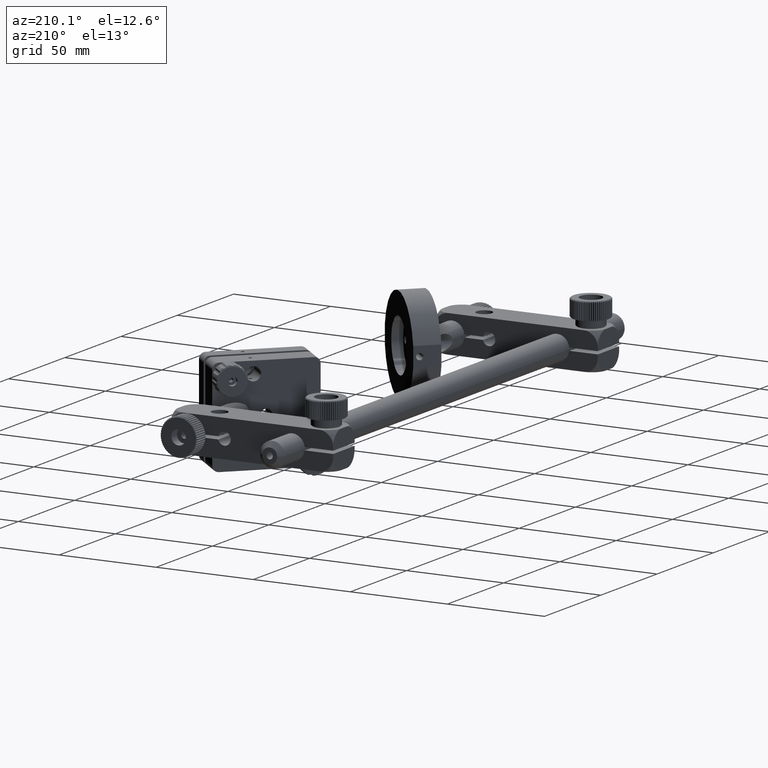
[diagram: clean part render]
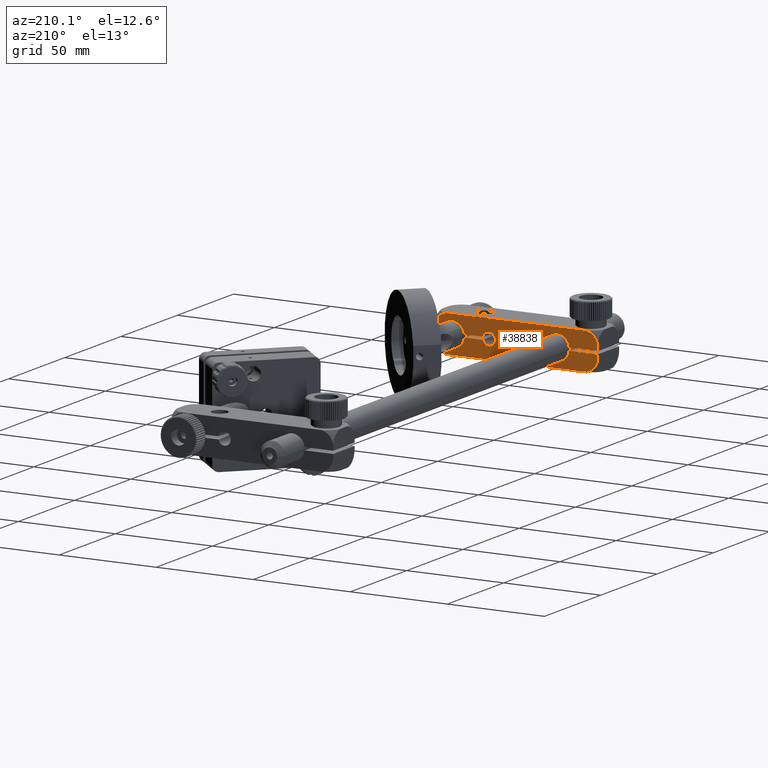
[diagram: same view with one face highlighted and labeled with its STEP entity id]
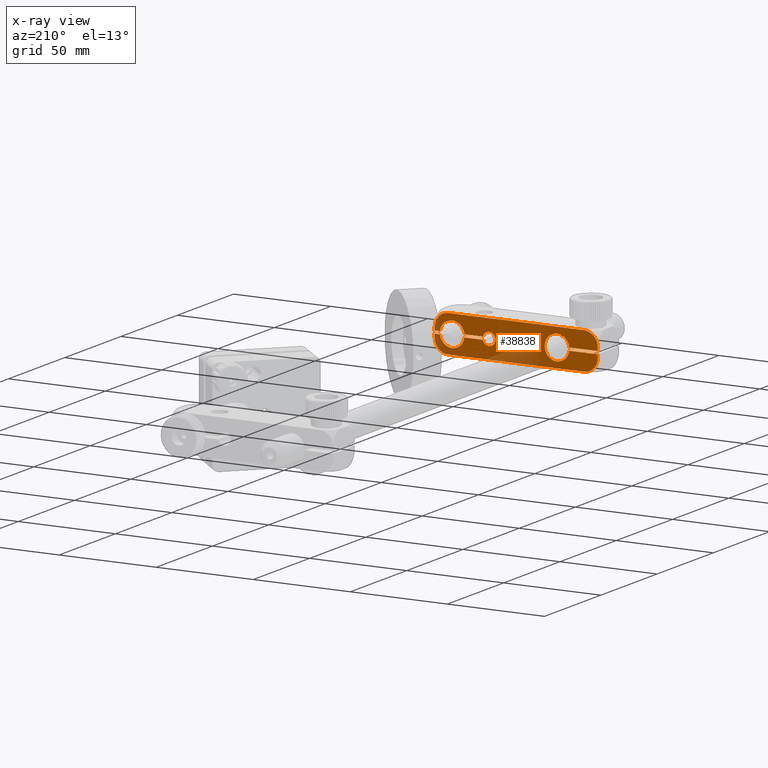
[diagram: x-ray of the same camera — body ghosted, the highlighted face saturated]
A machine part, auxiliary view. The second image highlights one B-rep face of the part: STEP entity #38838.
The next image is the same camera in x-ray: the body ghosted, the highlighted face saturated — about 15% of this face is hidden behind the body in this view.
In plain terms, the highlighted planar face has unit normal (0, -1, 0).
Its self-contained STEP definition (entity closure, byte-faithful):
#123 = CARTESIAN_POINT ( 'NONE',  ( -13.92893218813448900, 143.8670949863762600, 2.428932188134529400 ) ) ;
#374 = CARTESIAN_POINT ( 'NONE',  ( 54.00000000000000700, 143.8670949863762600, 6.349999999999972100 ) ) ;
#533 = EDGE_CURVE ( 'NONE', #46307, #14792, #1295, .T. ) ;
#534 = CIRCLE ( 'NONE', #3259, 7.071067811865467500 ) ;
#921 = ORIENTED_EDGE ( 'NONE', *, *, #43668, .F. ) ;
#1004 = CARTESIAN_POINT ( 'NONE',  ( 63.00000000000000000, 143.8670949863762000, -2.428932188134584400 ) ) ;
#1066 = CARTESIAN_POINT ( 'NONE',  ( 63.00000000000000000, 143.8670949863762000, 2.428932188134540000 ) ) ;
#1105 = DIRECTION ( 'NONE',  ( -0.0000000000000000000, -0.0000000000000000000, -1.000000000000000000 ) ) ;
#1124 = VECTOR ( 'NONE', #20418, 1000.000000000000000 ) ;
#1131 = ORIENTED_EDGE ( 'NONE', *, *, #21423, .F. ) ;
#1295 = LINE ( 'NONE', #26675, #5340 ) ;
#1808 = DIRECTION ( 'NONE',  ( -1.000000000000000000, -0.0000000000000000000, -0.0000000000000000000 ) ) ;
#2171 = VERTEX_POINT ( 'NONE', #39664 ) ;
#2292 = EDGE_CURVE ( 'NONE', #15689, #5230, #20998, .T. ) ;
#2426 = ORIENTED_EDGE ( 'NONE', *, *, #2292, .F. ) ;
#2659 = CIRCLE ( 'NONE', #7003, 7.071067811865467500 ) ;
#2667 = CIRCLE ( 'NONE', #36804, 7.071067811865467500 ) ;
#2793 = VECTOR ( 'NONE', #37359, 1000.000000000000000 ) ;
#2811 = AXIS2_PLACEMENT_3D ( 'NONE', #21240, #10143, #21408 ) ;
#3068 = CARTESIAN_POINT ( 'NONE',  ( 63.00000000000000000, 143.8670949863762600, 9.499999999999976900 ) ) ;
#3099 = ORIENTED_EDGE ( 'NONE', *, *, #41398, .T. ) ;
#3212 = DIRECTION ( 'NONE',  ( 0.0000000000000000000, 0.0000000000000000000, -1.000000000000000000 ) ) ;
#3259 = AXIS2_PLACEMENT_3D ( 'NONE', #40710, #33101, #10675 ) ;
#3272 = CARTESIAN_POINT ( 'NONE',  ( -13.92893218813447500, 143.8670949863762600, -9.500000000000037300 ) ) ;
#3335 = AXIS2_PLACEMENT_3D ( 'NONE', #12867, #42705, #4939 ) ;
#3532 = CARTESIAN_POINT ( 'NONE',  ( 55.92893218813449600, 143.8670949863762600, -2.428932188134573300 ) ) ;
#3783 = VECTOR ( 'NONE', #1105, 1000.000000000000000 ) ;
#3857 = DIRECTION ( 'NONE',  ( 0.0000000000000000000, 0.0000000000000000000, -1.000000000000000000 ) ) ;
#3865 = EDGE_CURVE ( 'NONE', #18624, #35172, #30878, .T. ) ;
#4153 = CARTESIAN_POINT ( 'NONE',  ( -21.00000000000000000, 143.8670949863762000, -2.428932188134584400 ) ) ;
#4413 = VERTEX_POINT ( 'NONE', #4153 ) ;
#4477 = VERTEX_POINT ( 'NONE', #45524 ) ;
#4527 = DIRECTION ( 'NONE',  ( 0.0000000000000000000, 0.0000000000000000000, -1.000000000000000000 ) ) ;
#4567 = LINE ( 'NONE', #3068, #12095 ) ;
#4671 = AXIS2_PLACEMENT_3D ( 'NONE', #35935, #13563, #13392 ) ;
#4745 = DIRECTION ( 'NONE',  ( 0.0000000000000000000, -1.000000000000000000, 0.0000000000000000000 ) ) ;
#4830 = CARTESIAN_POINT ( 'NONE',  ( -6.305553108173777200, 143.8670949863762600, -0.7500000000000222000 ) ) ;
#4939 = DIRECTION ( 'NONE',  ( 0.0000000000000000000, 0.0000000000000000000, -1.000000000000000000 ) ) ;
#5217 = LINE ( 'NONE', #22693, #24475 ) ;
#5230 = VERTEX_POINT ( 'NONE', #4830 ) ;
#5321 = DIRECTION ( 'NONE',  ( 0.0000000000000000000, -1.000000000000000000, 0.0000000000000000000 ) ) ;
#5340 = VECTOR ( 'NONE', #26338, 1000.000000000000000 ) ;
#5472 = ORIENTED_EDGE ( 'NONE', *, *, #8112, .F. ) ;
#5868 = CARTESIAN_POINT ( 'NONE',  ( 35.00000000000000000, 143.8670949863762600, 3.249999999999972000 ) ) ;
#6034 = CARTESIAN_POINT ( 'NONE',  ( 63.00000000000000000, 143.8670949863762600, 0.7499999999999784600 ) ) ;
#6434 = CARTESIAN_POINT ( 'NONE',  ( 63.00000000000000000, 143.8670949863762600, -0.7500000000000218700 ) ) ;
#6920 = DIRECTION ( 'NONE',  ( 0.0000000000000000000, -1.000000000000000000, 0.0000000000000000000 ) ) ;
#6921 = ORIENTED_EDGE ( 'NONE', *, *, #15515, .F. ) ;
#7003 = AXIS2_PLACEMENT_3D ( 'NONE', #3532, #40677, #18142 ) ;
#7293 = LINE ( 'NONE', #20990, #36507 ) ;
#7398 = CARTESIAN_POINT ( 'NONE',  ( -13.92893218813448900, 143.8670949863762600, 2.428932188134529400 ) ) ;
#7493 = AXIS2_PLACEMENT_3D ( 'NONE', #10865, #29366, #18051 ) ;
#7631 = CARTESIAN_POINT ( 'NONE',  ( -13.92893218813448900, 143.8670949863762600, -2.428932188134573300 ) ) ;
#7674 = ORIENTED_EDGE ( 'NONE', *, *, #30524, .F. ) ;
#7926 = DIRECTION ( 'NONE',  ( 0.0000000000000000000, -1.000000000000000000, 0.0000000000000000000 ) ) ;
#8112 = EDGE_CURVE ( 'NONE', #8384, #4413, #12670, .T. ) ;
#8384 = VERTEX_POINT ( 'NONE', #25243 ) ;
#8467 = EDGE_CURVE ( 'NONE', #23860, #2171, #534, .T. ) ;
#8799 = EDGE_CURVE ( 'NONE', #31212, #38845, #15012, .T. ) ;
#9259 = CIRCLE ( 'NONE', #3335, 7.071067811865467500 ) ;
#9469 = AXIS2_PLACEMENT_3D ( 'NONE', #7398, #6920, #3857 ) ;
#9641 = CARTESIAN_POINT ( 'NONE',  ( 54.00000000000000700, 143.8670949863762600, -3.155314007983727800E-014 ) ) ;
#9927 = DIRECTION ( 'NONE',  ( 0.0000000000000000000, 1.000000000000000000, 0.0000000000000000000 ) ) ;
#9935 = CIRCLE ( 'NONE', #7493, 6.350000000000001400 ) ;
#10143 = DIRECTION ( 'NONE',  ( 0.0000000000000000000, 1.000000000000000000, 0.0000000000000000000 ) ) ;
#10208 = ORIENTED_EDGE ( 'NONE', *, *, #18230, .F. ) ;
#10610 = AXIS2_PLACEMENT_3D ( 'NONE', #19889, #9927, #35729 ) ;
#10675 = DIRECTION ( 'NONE',  ( 0.0000000000000000000, 0.0000000000000000000, -1.000000000000000000 ) ) ;
#10704 = CARTESIAN_POINT ( 'NONE',  ( -21.00000000000000000, 143.8670949863762000, 2.428932188134540000 ) ) ;
#10865 = CARTESIAN_POINT ( 'NONE',  ( 0.0000000000000000000, 143.8670949863762600, -2.494026576919642200E-014 ) ) ;
#11212 = CIRCLE ( 'NONE', #10610, 6.350000000000001400 ) ;
#11327 = VERTEX_POINT ( 'NONE', #25455 ) ;
#11375 = DIRECTION ( 'NONE',  ( 0.0000000000000000000, 0.0000000000000000000, -1.000000000000000000 ) ) ;
#11862 = EDGE_CURVE ( 'NONE', #16061, #42581, #36387, .T. ) ;
#12074 = DIRECTION ( 'NONE',  ( 0.0000000000000000000, 0.0000000000000000000, 1.000000000000000000 ) ) ;
#12095 = VECTOR ( 'NONE', #18011, 1000.000000000000000 ) ;
#12467 = PLANE ( 'NONE',  #12553 ) ;
#12553 = AXIS2_PLACEMENT_3D ( 'NONE', #38580, #5321, #21286 ) ;
#12620 = CIRCLE ( 'NONE', #22725, 7.071067811865467500 ) ;
#12670 = LINE ( 'NONE', #19037, #2793 ) ;
#12867 = CARTESIAN_POINT ( 'NONE',  ( 55.92893218813449600, 143.8670949863762600, 2.428932188134529400 ) ) ;
#13062 = CARTESIAN_POINT ( 'NONE',  ( 38.16227766016837800, 143.8670949863762600, 0.7499999999999783500 ) ) ;
#13392 = DIRECTION ( 'NONE',  ( 0.0000000000000000000, 0.0000000000000000000, 1.000000000000000000 ) ) ;
#13563 = DIRECTION ( 'NONE',  ( 0.0000000000000000000, 1.000000000000000000, 0.0000000000000000000 ) ) ;
#13804 = CARTESIAN_POINT ( 'NONE',  ( -6.305553108173780800, 143.8670949863762600, 0.7499999999999781300 ) ) ;
#14166 = CIRCLE ( 'NONE', #27245, 3.250000000000001300 ) ;
#14599 = ORIENTED_EDGE ( 'NONE', *, *, #11862, .F. ) ;
#14792 = VERTEX_POINT ( 'NONE', #3272 ) ;
#15012 = CIRCLE ( 'NONE', #9469, 7.071067811865467500 ) ;
#15017 = CIRCLE ( 'NONE', #30264, 7.071067811865467500 ) ;
#15168 = CARTESIAN_POINT ( 'NONE',  ( 54.00000000000000700, 143.8670949863762600, -3.155314007983727800E-014 ) ) ;
#15367 = LINE ( 'NONE', #19612, #3783 ) ;
#15400 = ORIENTED_EDGE ( 'NONE', *, *, #39966, .F. ) ;
#15499 = ORIENTED_EDGE ( 'NONE', *, *, #8467, .F. ) ;
#15515 = EDGE_CURVE ( 'NONE', #35172, #37438, #38616, .T. ) ;
#15689 = VERTEX_POINT ( 'NONE', #24000 ) ;
#15717 = EDGE_CURVE ( 'NONE', #4477, #15689, #11212, .T. ) ;
#16061 = VERTEX_POINT ( 'NONE', #374 ) ;
#16102 = VERTEX_POINT ( 'NONE', #1004 ) ;
#16888 = ORIENTED_EDGE ( 'NONE', *, *, #34533, .F. ) ;
#16893 = AXIS2_PLACEMENT_3D ( 'NONE', #27460, #19888, #12074 ) ;
#17174 = VERTEX_POINT ( 'NONE', #1066 ) ;
#17265 = CIRCLE ( 'NONE', #43865, 7.071067811865467500 ) ;
#18011 = DIRECTION ( 'NONE',  ( -0.0000000000000000000, -0.0000000000000000000, -1.000000000000000000 ) ) ;
#18051 = DIRECTION ( 'NONE',  ( 0.0000000000000000000, 0.0000000000000000000, 1.000000000000000000 ) ) ;
#18142 = DIRECTION ( 'NONE',  ( 0.0000000000000000000, 0.0000000000000000000, -1.000000000000000000 ) ) ;
#18230 = EDGE_CURVE ( 'NONE', #39216, #32289, #5217, .T. ) ;
#18291 = ORIENTED_EDGE ( 'NONE', *, *, #24201, .F. ) ;
#18306 = CARTESIAN_POINT ( 'NONE',  ( -18.92893218813449600, 143.8670949863762600, -7.428932188134579600 ) ) ;
#18624 = VERTEX_POINT ( 'NONE', #10704 ) ;
#18729 = VECTOR ( 'NONE', #38044, 1000.000000000000000 ) ;
#19037 = CARTESIAN_POINT ( 'NONE',  ( -21.00000000000000000, 143.8670949863762600, 9.499999999999976900 ) ) ;
#19612 = CARTESIAN_POINT ( 'NONE',  ( 63.00000000000000000, 143.8670949863762600, 9.499999999999976900 ) ) ;
#19888 = DIRECTION ( 'NONE',  ( 0.0000000000000000000, 1.000000000000000000, 0.0000000000000000000 ) ) ;
#19889 = CARTESIAN_POINT ( 'NONE',  ( 0.0000000000000000000, 143.8670949863762600, -2.494026576919642200E-014 ) ) ;
#20247 = EDGE_CURVE ( 'NONE', #38845, #18624, #12620, .T. ) ;
#20418 = DIRECTION ( 'NONE',  ( -0.0000000000000000000, -0.0000000000000000000, -1.000000000000000000 ) ) ;
#20988 = ORIENTED_EDGE ( 'NONE', *, *, #36639, .T. ) ;
#20990 = CARTESIAN_POINT ( 'NONE',  ( -21.00000000000000000, 143.8670949863762600, 9.499999999999976900 ) ) ;
#20998 = CIRCLE ( 'NONE', #2811, 6.350000000000001400 ) ;
#21221 = VERTEX_POINT ( 'NONE', #6034 ) ;
#21240 = CARTESIAN_POINT ( 'NONE',  ( 0.0000000000000000000, 143.8670949863762600, -2.494026576919642200E-014 ) ) ;
#21259 = DIRECTION ( 'NONE',  ( 0.0000000000000000000, 1.000000000000000000, 0.0000000000000000000 ) ) ;
#21286 = DIRECTION ( 'NONE',  ( 0.0000000000000000000, -0.0000000000000000000, -1.000000000000000000 ) ) ;
#21408 = DIRECTION ( 'NONE',  ( 0.0000000000000000000, 0.0000000000000000000, 1.000000000000000000 ) ) ;
#21423 = EDGE_CURVE ( 'NONE', #44371, #14792, #2667, .T. ) ;
#22264 = VERTEX_POINT ( 'NONE', #5868 ) ;
#22693 = CARTESIAN_POINT ( 'NONE',  ( 38.16227766016837800, 143.8670949863762600, 0.7499999999999783500 ) ) ;
#22725 = AXIS2_PLACEMENT_3D ( 'NONE', #123, #33066, #3212 ) ;
#22797 = ORIENTED_EDGE ( 'NONE', *, *, #23751, .F. ) ;
#23336 = ORIENTED_EDGE ( 'NONE', *, *, #48270, .F. ) ;
#23481 = DIRECTION ( 'NONE',  ( 0.0000000000000000000, 0.0000000000000000000, -1.000000000000000000 ) ) ;
#23751 = EDGE_CURVE ( 'NONE', #5230, #8384, #24659, .T. ) ;
#23860 = VERTEX_POINT ( 'NONE', #43656 ) ;
#24000 = CARTESIAN_POINT ( 'NONE',  ( 7.776507174585694100E-016, 143.8670949863762600, -6.350000000000026300 ) ) ;
#24201 = EDGE_CURVE ( 'NONE', #32710, #29259, #14166, .T. ) ;
#24344 = VERTEX_POINT ( 'NONE', #6434 ) ;
#24475 = VECTOR ( 'NONE', #45026, 1000.000000000000000 ) ;
#24659 = LINE ( 'NONE', #39256, #47345 ) ;
#24789 = CARTESIAN_POINT ( 'NONE',  ( 35.00000000000000000, 143.8670949863762600, -2.922638800757474300E-014 ) ) ;
#24945 = DIRECTION ( 'NONE',  ( 0.0000000000000000000, 0.0000000000000000000, 1.000000000000000000 ) ) ;
#25184 = CIRCLE ( 'NONE', #4671, 6.350000000000003200 ) ;
#25243 = CARTESIAN_POINT ( 'NONE',  ( -21.00000000000000000, 143.8670949863762600, -0.7500000000000222000 ) ) ;
#25455 = CARTESIAN_POINT ( 'NONE',  ( 60.30555310817379000, 143.8670949863762600, -0.7500000000000218700 ) ) ;
#25748 = LINE ( 'NONE', #37018, #45569 ) ;
#26338 = DIRECTION ( 'NONE',  ( -1.000000000000000000, -0.0000000000000000000, -0.0000000000000000000 ) ) ;
#26371 = CARTESIAN_POINT ( 'NONE',  ( 60.30555310817379000, 143.8670949863762600, 0.7499999999999784600 ) ) ;
#26675 = CARTESIAN_POINT ( 'NONE',  ( -21.00000000000000000, 143.8670949863762600, -9.500000000000023100 ) ) ;
#27245 = AXIS2_PLACEMENT_3D ( 'NONE', #43096, #21259, #47336 ) ;
#27380 = EDGE_CURVE ( 'NONE', #17174, #23860, #9259, .T. ) ;
#27460 = CARTESIAN_POINT ( 'NONE',  ( 35.00000000000000000, 143.8670949863762600, -2.922638800757474300E-014 ) ) ;
#27972 = DIRECTION ( 'NONE',  ( 0.0000000000000000000, 1.000000000000000000, 0.0000000000000000000 ) ) ;
#28356 = CARTESIAN_POINT ( 'NONE',  ( 38.16227766016838500, 143.8670949863762600, -0.7500000000000223200 ) ) ;
#28476 = EDGE_CURVE ( 'NONE', #46307, #40174, #15017, .T. ) ;
#28834 = CARTESIAN_POINT ( 'NONE',  ( -18.92893218813449600, 143.8670949863762600, 7.428932188134536900 ) ) ;
#29150 = CARTESIAN_POINT ( 'NONE',  ( 35.00000000000000000, 143.8670949863762600, -3.250000000000030200 ) ) ;
#29259 = VERTEX_POINT ( 'NONE', #29150 ) ;
#29366 = DIRECTION ( 'NONE',  ( 0.0000000000000000000, 1.000000000000000000, 0.0000000000000000000 ) ) ;
#29378 = ORIENTED_EDGE ( 'NONE', *, *, #27380, .F. ) ;
#29562 = VECTOR ( 'NONE', #37458, 1000.000000000000000 ) ;
#29586 = EDGE_CURVE ( 'NONE', #11327, #34354, #44700, .T. ) ;
#29946 = ORIENTED_EDGE ( 'NONE', *, *, #15717, .F. ) ;
#30237 = ORIENTED_EDGE ( 'NONE', *, *, #533, .T. ) ;
#30264 = AXIS2_PLACEMENT_3D ( 'NONE', #34407, #4745, #23481 ) ;
#30524 = EDGE_CURVE ( 'NONE', #42581, #21221, #38294, .T. ) ;
#30878 = LINE ( 'NONE', #42922, #1124 ) ;
#31151 = ORIENTED_EDGE ( 'NONE', *, *, #47254, .F. ) ;
#31203 = ORIENTED_EDGE ( 'NONE', *, *, #8799, .F. ) ;
#31212 = VERTEX_POINT ( 'NONE', #31812 ) ;
#31812 = CARTESIAN_POINT ( 'NONE',  ( -13.92893218813448900, 143.8670949863762600, 9.499999999999976900 ) ) ;
#32131 = ORIENTED_EDGE ( 'NONE', *, *, #29586, .F. ) ;
#32226 = CARTESIAN_POINT ( 'NONE',  ( 60.30555310817379000, 143.8670949863762600, 0.7499999999999790200 ) ) ;
#32289 = VERTEX_POINT ( 'NONE', #40127 ) ;
#32710 = VERTEX_POINT ( 'NONE', #28356 ) ;
#33066 = DIRECTION ( 'NONE',  ( 0.0000000000000000000, -1.000000000000000000, 0.0000000000000000000 ) ) ;
#33101 = DIRECTION ( 'NONE',  ( 0.0000000000000000000, -1.000000000000000000, 0.0000000000000000000 ) ) ;
#33117 = ORIENTED_EDGE ( 'NONE', *, *, #34517, .F. ) ;
#33410 = ORIENTED_EDGE ( 'NONE', *, *, #28476, .F. ) ;
#33771 = DIRECTION ( 'NONE',  ( 0.0000000000000000000, -1.000000000000000000, 0.0000000000000000000 ) ) ;
#34204 = CARTESIAN_POINT ( 'NONE',  ( -13.92893218813448900, 143.8670949863762600, -2.428932188134573300 ) ) ;
#34354 = VERTEX_POINT ( 'NONE', #42866 ) ;
#34407 = CARTESIAN_POINT ( 'NONE',  ( 55.92893218813449600, 143.8670949863762600, -2.428932188134573300 ) ) ;
#34517 = EDGE_CURVE ( 'NONE', #24344, #11327, #36848, .T. ) ;
#34533 = EDGE_CURVE ( 'NONE', #34354, #32710, #25748, .T. ) ;
#34788 = CARTESIAN_POINT ( 'NONE',  ( 60.92893218813449600, 143.8670949863762600, -7.428932188134578700 ) ) ;
#34905 = ORIENTED_EDGE ( 'NONE', *, *, #20247, .F. ) ;
#35172 = VERTEX_POINT ( 'NONE', #38393 ) ;
#35186 = EDGE_LOOP ( 'NONE', ( #47404, #34905, #31203, #23336, #15499, #29378, #3099, #7674, #14599, #36792, #10208, #921, #44827, #18291, #16888, #32131, #33117, #20988, #15400, #33410, #30237, #1131, #31151, #5472, #22797, #2426, #29946, #41080, #6921 ) ) ;
#35729 = DIRECTION ( 'NONE',  ( 0.0000000000000000000, 0.0000000000000000000, 1.000000000000000000 ) ) ;
#35882 = DIRECTION ( 'NONE',  ( 0.0000000000000000000, 1.000000000000000000, 0.0000000000000000000 ) ) ;
#35935 = CARTESIAN_POINT ( 'NONE',  ( 54.00000000000000700, 143.8670949863762600, -3.155314007983727800E-014 ) ) ;
#36014 = CARTESIAN_POINT ( 'NONE',  ( 55.92893218813449600, 143.8670949863762600, -9.500000000000023100 ) ) ;
#36017 = DIRECTION ( 'NONE',  ( -1.000000000000000000, -0.0000000000000000000, -2.213493669684004800E-017 ) ) ;
#36221 = VECTOR ( 'NONE', #44494, 1000.000000000000000 ) ;
#36387 = CIRCLE ( 'NONE', #46117, 6.350000000000003200 ) ;
#36507 = VECTOR ( 'NONE', #1808, 1000.000000000000000 ) ;
#36639 = EDGE_CURVE ( 'NONE', #24344, #16102, #4567, .T. ) ;
#36792 = ORIENTED_EDGE ( 'NONE', *, *, #43146, .F. ) ;
#36804 = AXIS2_PLACEMENT_3D ( 'NONE', #7631, #33771, #11375 ) ;
#36847 = CIRCLE ( 'NONE', #39365, 3.250000000000001300 ) ;
#36848 = LINE ( 'NONE', #44328, #36221 ) ;
#37018 = CARTESIAN_POINT ( 'NONE',  ( 38.16227766016838500, 143.8670949863762600, -0.7500000000000218700 ) ) ;
#37269 = EDGE_CURVE ( 'NONE', #29259, #22264, #48258, .T. ) ;
#37359 = DIRECTION ( 'NONE',  ( -0.0000000000000000000, -0.0000000000000000000, -1.000000000000000000 ) ) ;
#37438 = VERTEX_POINT ( 'NONE', #13804 ) ;
#37458 = DIRECTION ( 'NONE',  ( 1.000000000000000000, 0.0000000000000000000, 0.0000000000000000000 ) ) ;
#38044 = DIRECTION ( 'NONE',  ( 1.000000000000000000, 0.0000000000000000000, -2.213493669684004800E-017 ) ) ;
#38294 = LINE ( 'NONE', #26371, #29562 ) ;
#38393 = CARTESIAN_POINT ( 'NONE',  ( -21.00000000000000000, 143.8670949863762600, 0.7499999999999784600 ) ) ;
#38580 = CARTESIAN_POINT ( 'NONE',  ( -21.00000000000000000, 143.8670949863762600, 9.499999999999976900 ) ) ;
#38616 = LINE ( 'NONE', #45532, #18729 ) ;
#38838 = ADVANCED_FACE ( 'NONE', ( #40559 ), #12467, .F. ) ;
#38845 = VERTEX_POINT ( 'NONE', #28834 ) ;
#39216 = VERTEX_POINT ( 'NONE', #13062 ) ;
#39256 = CARTESIAN_POINT ( 'NONE',  ( -21.00000000000000000, 143.8670949863762600, -0.7500000000000222000 ) ) ;
#39365 = AXIS2_PLACEMENT_3D ( 'NONE', #24789, #35882, #24945 ) ;
#39664 = CARTESIAN_POINT ( 'NONE',  ( 55.92893218813449600, 143.8670949863762600, 9.499999999999976900 ) ) ;
#39966 = EDGE_CURVE ( 'NONE', #40174, #16102, #2659, .T. ) ;
#40127 = CARTESIAN_POINT ( 'NONE',  ( 47.69444689182622500, 143.8670949863762600, 0.7499999999999784600 ) ) ;
#40174 = VERTEX_POINT ( 'NONE', #34788 ) ;
#40226 = AXIS2_PLACEMENT_3D ( 'NONE', #9641, #27972, #42914 ) ;
#40559 = FACE_OUTER_BOUND ( 'NONE', #35186, .T. ) ;
#40677 = DIRECTION ( 'NONE',  ( 0.0000000000000000000, -1.000000000000000000, 0.0000000000000000000 ) ) ;
#40710 = CARTESIAN_POINT ( 'NONE',  ( 55.92893218813449600, 143.8670949863762600, 2.428932188134529400 ) ) ;
#41075 = DIRECTION ( 'NONE',  ( -1.000000000000000000, -0.0000000000000000000, -0.0000000000000000000 ) ) ;
#41080 = ORIENTED_EDGE ( 'NONE', *, *, #43829, .F. ) ;
#41398 = EDGE_CURVE ( 'NONE', #17174, #21221, #15367, .T. ) ;
#42581 = VERTEX_POINT ( 'NONE', #32226 ) ;
#42705 = DIRECTION ( 'NONE',  ( 0.0000000000000000000, -1.000000000000000000, 0.0000000000000000000 ) ) ;
#42866 = CARTESIAN_POINT ( 'NONE',  ( 47.69444689182622500, 143.8670949863762600, -0.7500000000000257600 ) ) ;
#42914 = DIRECTION ( 'NONE',  ( 0.0000000000000000000, 0.0000000000000000000, 1.000000000000000000 ) ) ;
#42922 = CARTESIAN_POINT ( 'NONE',  ( -21.00000000000000000, 143.8670949863762600, 9.499999999999976900 ) ) ;
#43096 = CARTESIAN_POINT ( 'NONE',  ( 35.00000000000000000, 143.8670949863762600, -2.922638800757474300E-014 ) ) ;
#43146 = EDGE_CURVE ( 'NONE', #32289, #16061, #25184, .T. ) ;
#43656 = CARTESIAN_POINT ( 'NONE',  ( 60.92893218813449600, 143.8670949863762600, 7.428932188134536000 ) ) ;
#43668 = EDGE_CURVE ( 'NONE', #22264, #39216, #36847, .T. ) ;
#43829 = EDGE_CURVE ( 'NONE', #37438, #4477, #9935, .T. ) ;
#43865 = AXIS2_PLACEMENT_3D ( 'NONE', #34204, #7926, #4527 ) ;
#44328 = CARTESIAN_POINT ( 'NONE',  ( 60.30555310817379000, 143.8670949863762600, -0.7500000000000218700 ) ) ;
#44371 = VERTEX_POINT ( 'NONE', #18306 ) ;
#44494 = DIRECTION ( 'NONE',  ( -1.000000000000000000, -0.0000000000000000000, -0.0000000000000000000 ) ) ;
#44547 = DIRECTION ( 'NONE',  ( 0.0000000000000000000, 1.000000000000000000, 0.0000000000000000000 ) ) ;
#44700 = CIRCLE ( 'NONE', #40226, 6.350000000000000500 ) ;
#44709 = DIRECTION ( 'NONE',  ( 0.0000000000000000000, 0.0000000000000000000, 1.000000000000000000 ) ) ;
#44827 = ORIENTED_EDGE ( 'NONE', *, *, #37269, .F. ) ;
#45026 = DIRECTION ( 'NONE',  ( 1.000000000000000000, 0.0000000000000000000, 1.137413894084777200E-017 ) ) ;
#45524 = CARTESIAN_POINT ( 'NONE',  ( 0.0000000000000000000, 143.8670949863762600, 6.349999999999976600 ) ) ;
#45532 = CARTESIAN_POINT ( 'NONE',  ( -21.00000000000000000, 143.8670949863762600, 0.7499999999999784600 ) ) ;
#45569 = VECTOR ( 'NONE', #41075, 1000.000000000000000 ) ;
#46117 = AXIS2_PLACEMENT_3D ( 'NONE', #15168, #44547, #44709 ) ;
#46307 = VERTEX_POINT ( 'NONE', #36014 ) ;
#47254 = EDGE_CURVE ( 'NONE', #4413, #44371, #17265, .T. ) ;
#47336 = DIRECTION ( 'NONE',  ( 0.0000000000000000000, 0.0000000000000000000, 1.000000000000000000 ) ) ;
#47345 = VECTOR ( 'NONE', #36017, 1000.000000000000000 ) ;
#47404 = ORIENTED_EDGE ( 'NONE', *, *, #3865, .F. ) ;
#48258 = CIRCLE ( 'NONE', #16893, 3.250000000000001300 ) ;
#48270 = EDGE_CURVE ( 'NONE', #2171, #31212, #7293, .T. ) ;